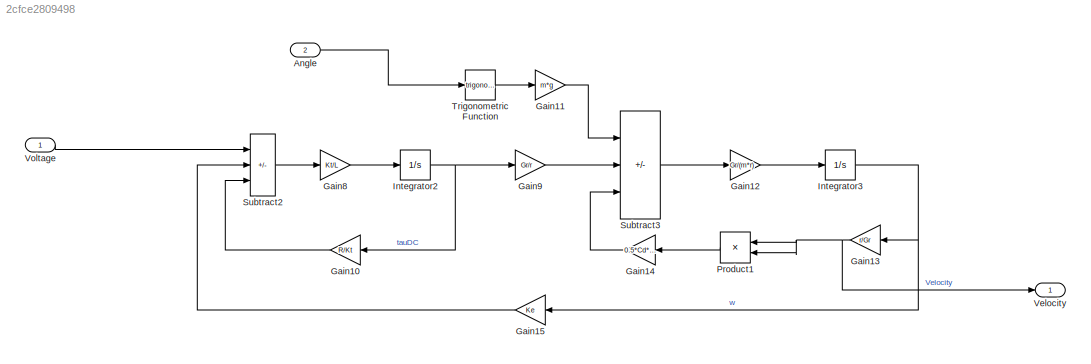
MODEL slx_2cfce2809498
KIND model
CONFIG AbsTol = auto
CONFIG EnableMultiTasking = off
CONFIG FixedStep = auto
CONFIG MaxStep = auto
CONFIG MinStep = auto
CONFIG RelTol = 1e-3
CONFIG SampleTimeConstraint = Unconstrained
CONFIG SolverName = VariableStepAuto
CONFIG StartTime = 0.0
CONFIG StopTime = 10.0
BLOCK [Inport] Angle
  NameLocation = left
  Port = 2
BLOCK [Gain] Gain10
  Gain = R/Kt
BLOCK [Gain] Gain11
  Gain = m*g
BLOCK [Gain] Gain12
  Gain = Gr/(m*r)
BLOCK [Gain] Gain13
  Gain = r/Gr
BLOCK [Gain] Gain14
  Gain = 0.5*Cd*rho*A
BLOCK [Gain] Gain15
  Gain = Ke
BLOCK [Gain] Gain8
  Gain = Kt/L
BLOCK [Gain] Gain9
  Gain = Gr/r
BLOCK [Integrator] Integrator2
  Ports = [1, 1]
BLOCK [Integrator] Integrator3
  Ports = [1, 1]
BLOCK [Product] Product1
  Ports = [2, 1]
BLOCK [Sum] Subtract2
  IconShape = rectangular
  Inputs = +--
  Ports = [3, 1]
BLOCK [Sum] Subtract3
  IconShape = rectangular
  Inputs = -+-
  Ports = [3, 1]
BLOCK [Trigonometry] Trigonometric Function
  Ports = [1, 1]
BLOCK [Outport] Velocity
BLOCK [Inport] Voltage
LINE Angle:1 -> Trigonometric Function:1
LINE Gain10:1 -> Subtract2:3
LINE Gain11:1 -> Subtract3:1
LINE Gain12:1 -> Integrator3:1
NET Gain13:1 -> Product1:1, Product1:2, Velocity:1
LINE Gain14:1 -> Subtract3:3
LINE Gain15:1 -> Subtract2:2
LINE Gain8:1 -> Integrator2:1
LINE Gain9:1 -> Subtract3:2
NET Integrator2:1 -> Gain10:1, Gain9:1
NET Integrator3:1 -> Gain13:1, Gain15:1
LINE Product1:1 -> Gain14:1
LINE Subtract2:1 -> Gain8:1
LINE Subtract3:1 -> Gain12:1
LINE Trigonometric Function:1 -> Gain11:1
LINE Voltage:1 -> Subtract2:1
note: NET lines group one-source signal fan-out (src -> all destinations, sorted); 1:1 wires keep LINE
